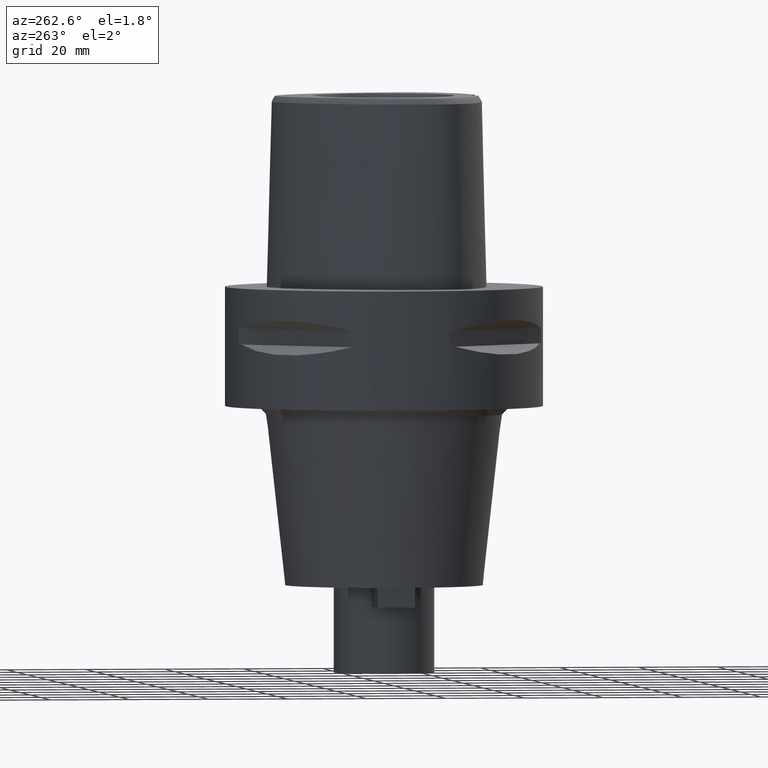
[diagram: clean part render]
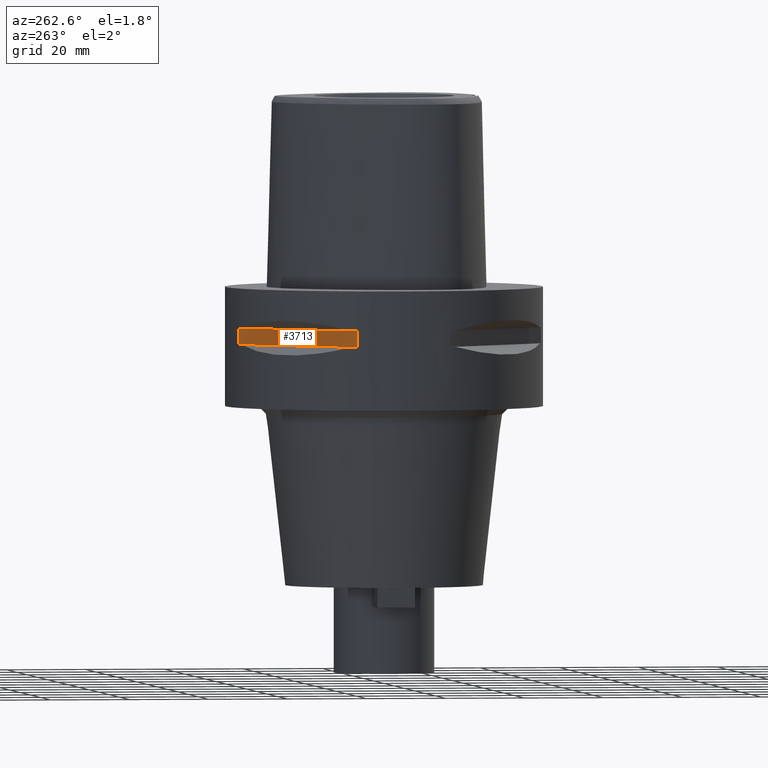
[diagram: same view with one face highlighted and labeled with its STEP entity id]
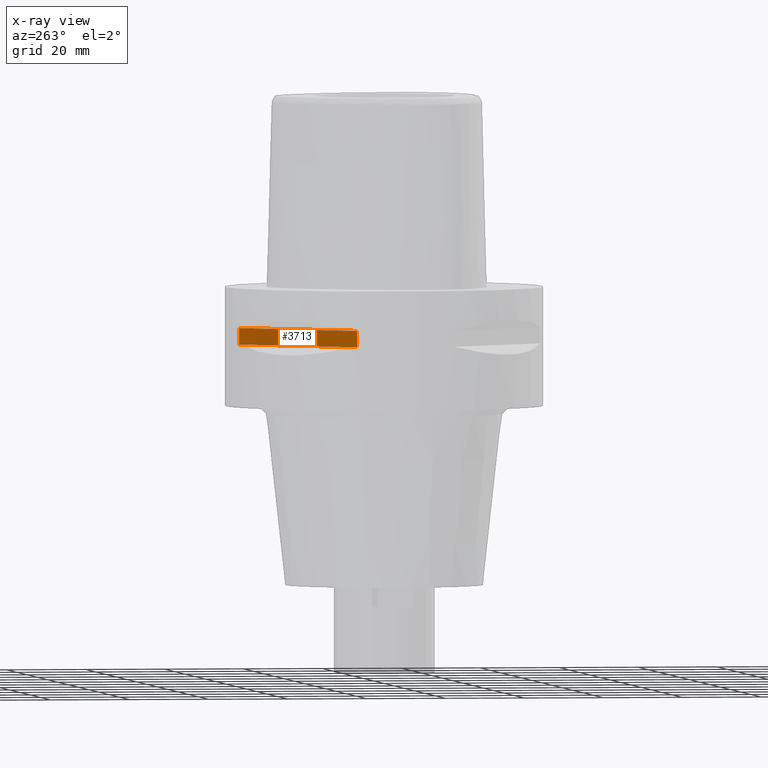
[diagram: x-ray of the same camera — body ghosted, the highlighted face saturated]
A machine part, auxiliary view. The second image highlights one B-rep face of the part: STEP entity #3713.
The next image is the same camera in x-ray: the body ghosted, the highlighted face saturated — about 0% of this face is hidden behind the body in this view.
In plain terms, the highlighted planar face has unit normal (0.7071, -0.7071, 0).
Its self-contained STEP definition (entity closure, byte-faithful):
#403=DIRECTION('',(0.E0,0.E0,-1.E0));
#404=VECTOR('',#403,4.1E0);
#405=CARTESIAN_POINT('',(-1.176033600281E1,3.823211342708E1,-9.95E0));
#406=LINE('',#405,#404);
#421=DIRECTION('',(0.E0,0.E0,1.E0));
#422=VECTOR('',#421,4.1E0);
#423=CARTESIAN_POINT('',(-3.823211342708E1,1.176033600281E1,-1.405E1));
#424=LINE('',#423,#422);
#1556=DIRECTION('',(-7.071067811865E-1,-7.071067811865E-1,0.E0));
#1557=VECTOR('',#1556,3.743674665352E1);
#1558=CARTESIAN_POINT('',(-1.176033600281E1,3.823211342708E1,-9.95E0));
#1559=LINE('',#1558,#1557);
#1579=DIRECTION('',(-7.071067811865E-1,-7.071067811865E-1,0.E0));
#1580=VECTOR('',#1579,3.743674665352E1);
#1581=CARTESIAN_POINT('',(-1.176033600281E1,3.823211342708E1,-1.405E1));
#1582=LINE('',#1581,#1580);
#1696=CARTESIAN_POINT('',(-1.176033600281E1,3.823211342708E1,-9.95E0));
#1697=VERTEX_POINT('',#1696);
#1698=CARTESIAN_POINT('',(-1.176033600281E1,3.823211342708E1,-1.405E1));
#1699=VERTEX_POINT('',#1698);
#1703=CARTESIAN_POINT('',(-3.823211342708E1,1.176033600281E1,-1.405E1));
#1704=VERTEX_POINT('',#1703);
#1705=CARTESIAN_POINT('',(-3.823211342708E1,1.176033600281E1,-9.95E0));
#1706=VERTEX_POINT('',#1705);
#3701=CARTESIAN_POINT('',(-4.267389424461E1,7.318555185281E0,-9.95E0));
#3702=DIRECTION('',(7.071067811865E-1,-7.071067811865E-1,0.E0));
#3703=DIRECTION('',(0.E0,0.E0,-1.E0));
#3704=AXIS2_PLACEMENT_3D('',#3701,#3702,#3703);
#3705=PLANE('',#3704);
#3706=ORIENTED_EDGE('',*,*,#2642,.F.);
#3708=ORIENTED_EDGE('',*,*,#3707,.F.);
#3709=ORIENTED_EDGE('',*,*,#2634,.F.);
#3710=ORIENTED_EDGE('',*,*,#3694,.T.);
#3711=EDGE_LOOP('',(#3706,#3708,#3709,#3710));
#3712=FACE_OUTER_BOUND('',#3711,.F.);
#2634=EDGE_CURVE('',#1697,#1699,#406,.T.);
#2642=EDGE_CURVE('',#1704,#1706,#424,.T.);
#3694=EDGE_CURVE('',#1697,#1706,#1559,.T.);
#3707=EDGE_CURVE('',#1699,#1704,#1582,.T.);
#3713=ADVANCED_FACE('',(#3712),#3705,.F.);